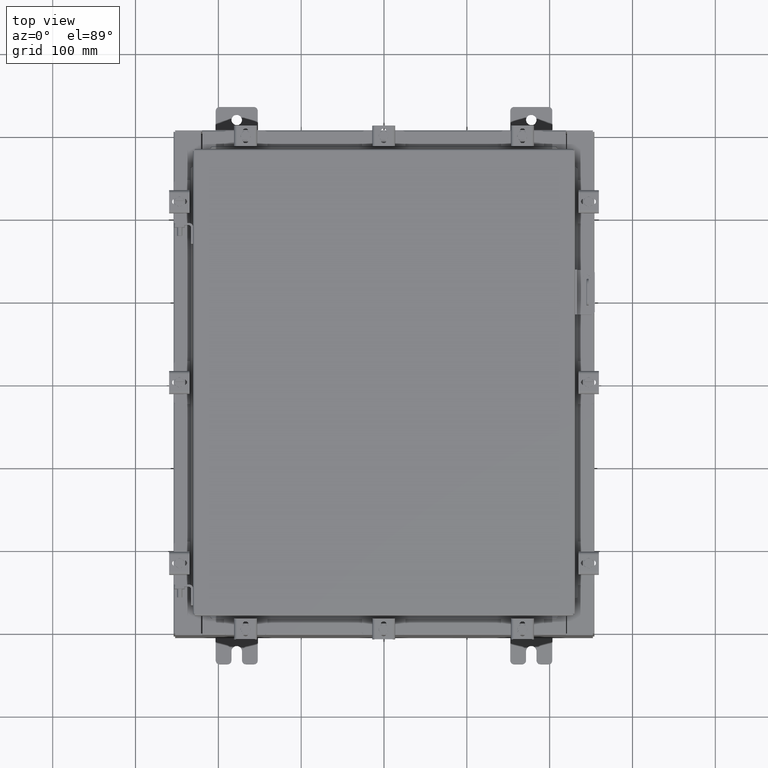
[diagram: clean part render]
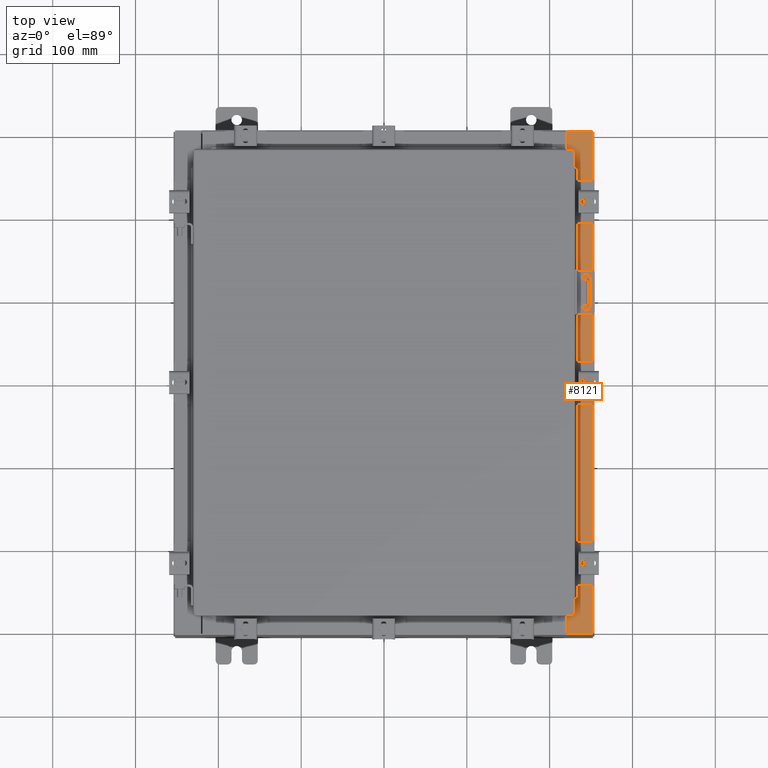
[diagram: same view with one face highlighted and labeled with its STEP entity id]
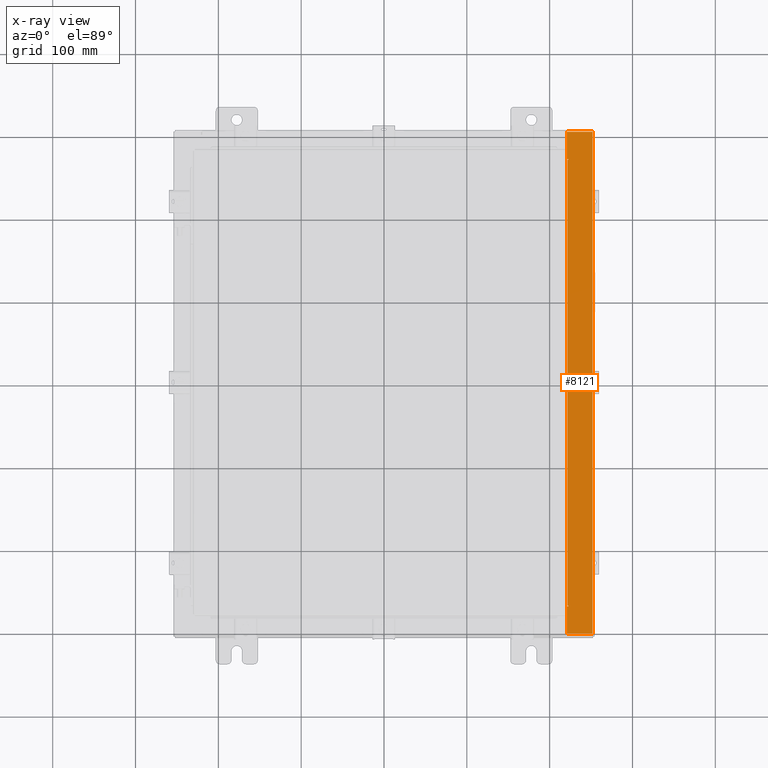
[diagram: x-ray of the same camera — body ghosted, the highlighted face saturated]
A machine part, top view. The second image highlights one B-rep face of the part: STEP entity #8121.
The next image is the same camera in x-ray: the body ghosted, the highlighted face saturated — about 0% of this face is hidden behind the body in this view.
In plain terms, the highlighted planar face has unit normal (-0, 0, -1).
Its self-contained STEP definition (entity closure, byte-faithful):
#71 = VERTEX_POINT ( 'NONE', #13041 ) ;
#249 = CARTESIAN_POINT ( 'NONE',  ( 8.750050000000030100, -10.59374999999999800, 7.925300000000007100 ) ) ;
#587 = CARTESIAN_POINT ( 'NONE',  ( 8.712700000000030100, 10.59374999999999600, 7.925300000000008900 ) ) ;
#917 = CARTESIAN_POINT ( 'NONE',  ( 8.750050000000030100, 10.63109999999999500, 7.925300000000008900 ) ) ;
#1127 = DIRECTION ( 'NONE',  ( -6.241167087353080700E-015, 0.0000000000000000000, -1.000000000000000000 ) ) ;
#1438 = DIRECTION ( 'NONE',  ( -0.0000000000000000000, 1.000000000000000000, -0.0000000000000000000 ) ) ;
#1679 = LINE ( 'NONE', #917, #15033 ) ;
#1693 = VECTOR ( 'NONE', #3961, 39.37007874015748100 ) ;
#1950 = ORIENTED_EDGE ( 'NONE', *, *, #14700, .F. ) ;
#2040 = LINE ( 'NONE', #587, #19522 ) ;
#2306 = CARTESIAN_POINT ( 'NONE',  ( 8.699700000000028400, 10.63109999999999600, 7.925300000000007100 ) ) ;
#2308 = EDGE_CURVE ( 'NONE', #4263, #12894, #5749, .T. ) ;
#2319 = VERTEX_POINT ( 'NONE', #4251 ) ;
#2482 = ORIENTED_EDGE ( 'NONE', *, *, #6385, .T. ) ;
#2648 = VECTOR ( 'NONE', #6606, 39.37007874015748100 ) ;
#2853 = AXIS2_PLACEMENT_3D ( 'NONE', #22026, #1127, #13351 ) ;
#2927 = ORIENTED_EDGE ( 'NONE', *, *, #17074, .F. ) ;
#2955 = CARTESIAN_POINT ( 'NONE',  ( 8.699700000000028400, -2.820533458446088700E-030, 7.925300000000007100 ) ) ;
#3057 = CARTESIAN_POINT ( 'NONE',  ( 4.972393517341134900E-014, 11.92529999999999800, 7.925300000000062200 ) ) ;
#3680 = EDGE_CURVE ( 'NONE', #21090, #11842, #16382, .T. ) ;
#3961 = DIRECTION ( 'NONE',  ( -3.242104277671754600E-031, -1.000000000000000000, 2.023451451157158500E-045 ) ) ;
#4081 = CARTESIAN_POINT ( 'NONE',  ( 8.699700000000028400, 11.92529999999999600, 7.925300000000007100 ) ) ;
#4251 = CARTESIAN_POINT ( 'NONE',  ( 8.750050000000030100, 10.59374999999999600, 7.925300000000007100 ) ) ;
#4263 = VERTEX_POINT ( 'NONE', #4081 ) ;
#4594 = VECTOR ( 'NONE', #7135, 39.37007874015748100 ) ;
#4816 = DIRECTION ( 'NONE',  ( -1.000000000000000000, 0.0000000000000000000, 6.241167087353082300E-015 ) ) ;
#4856 = CARTESIAN_POINT ( 'NONE',  ( 9.912300000000028500, -11.92530000000000000, 7.925300000000000000 ) ) ;
#5375 = CARTESIAN_POINT ( 'NONE',  ( 8.699700000000028400, -10.63109999999999600, 7.925300000000008900 ) ) ;
#5408 = ORIENTED_EDGE ( 'NONE', *, *, #5677, .F. ) ;
#5677 = EDGE_CURVE ( 'NONE', #15690, #9689, #13901, .T. ) ;
#5749 = LINE ( 'NONE', #2955, #1693 ) ;
#6385 = EDGE_CURVE ( 'NONE', #21446, #4263, #6472, .T. ) ;
#6472 = LINE ( 'NONE', #3057, #20430 ) ;
#6606 = DIRECTION ( 'NONE',  ( -0.0000000000000000000, -1.000000000000000000, -0.0000000000000000000 ) ) ;
#6727 = LINE ( 'NONE', #8444, #14920 ) ;
#6761 = VECTOR ( 'NONE', #18297, 39.37007874015748100 ) ;
#6998 = EDGE_CURVE ( 'NONE', #21446, #12657, #16576, .T. ) ;
#7047 = EDGE_CURVE ( 'NONE', #71, #12657, #6727, .T. ) ;
#7135 = DIRECTION ( 'NONE',  ( 1.000000000000000000, 0.0000000000000000000, 0.0000000000000000000 ) ) ;
#7506 = CARTESIAN_POINT ( 'NONE',  ( 8.750050000000030100, 10.61242499999999500, 7.925300000000008900 ) ) ;
#7754 = CARTESIAN_POINT ( 'NONE',  ( 8.699700000000028400, -2.820533458446088700E-030, 7.925300000000007100 ) ) ;
#7761 = CARTESIAN_POINT ( 'NONE',  ( 8.750050000000030100, -10.61242499999999800, 7.925300000000008900 ) ) ;
#8066 = ORIENTED_EDGE ( 'NONE', *, *, #2308, .T. ) ;
#8121 = ADVANCED_FACE ( 'NONE', ( #14182 ), #9798, .F. ) ;
#8179 = LINE ( 'NONE', #15308, #16942 ) ;
#8444 = CARTESIAN_POINT ( 'NONE',  ( 4.972393517341134900E-014, -11.92530000000000000, 7.925300000000062200 ) ) ;
#8558 = CIRCLE ( 'NONE', #11646, 0.01867499999999949400 ) ;
#8605 = EDGE_LOOP ( 'NONE', ( #5408, #18179, #21928, #17253, #2482, #8066, #1950, #14076, #18702, #17076, #11021, #2927 ) ) ;
#9224 = EDGE_CURVE ( 'NONE', #15690, #71, #20698, .T. ) ;
#9255 = DIRECTION ( 'NONE',  ( 1.000000000000000000, 0.0000000000000000000, 0.0000000000000000000 ) ) ;
#9508 = DIRECTION ( 'NONE',  ( 1.000000000000000000, 0.0000000000000000000, 0.0000000000000000000 ) ) ;
#9689 = VERTEX_POINT ( 'NONE', #17288 ) ;
#9798 = PLANE ( 'NONE',  #2853 ) ;
#10506 = CARTESIAN_POINT ( 'NONE',  ( 8.712700000000030100, -10.59374999999999800, 7.925300000000008900 ) ) ;
#11021 = ORIENTED_EDGE ( 'NONE', *, *, #3680, .F. ) ;
#11342 = DIRECTION ( 'NONE',  ( -1.000000000000000000, 4.340572780399910900E-014, 0.0000000000000000000 ) ) ;
#11646 = AXIS2_PLACEMENT_3D ( 'NONE', #7506, #19726, #9255 ) ;
#11842 = VERTEX_POINT ( 'NONE', #10506 ) ;
#12657 = VERTEX_POINT ( 'NONE', #20781 ) ;
#12782 = CIRCLE ( 'NONE', #20400, 0.01867499999999949400 ) ;
#12894 = VERTEX_POINT ( 'NONE', #2306 ) ;
#13041 = CARTESIAN_POINT ( 'NONE',  ( 8.699700000000028400, -11.92530000000000000, 7.925300000000007100 ) ) ;
#13351 = DIRECTION ( 'NONE',  ( -1.000000000000000000, 0.0000000000000000000, 6.241167087353080700E-015 ) ) ;
#13901 = LINE ( 'NONE', #5375, #4594 ) ;
#14076 = ORIENTED_EDGE ( 'NONE', *, *, #20466, .F. ) ;
#14182 = FACE_OUTER_BOUND ( 'NONE', #8605, .T. ) ;
#14700 = EDGE_CURVE ( 'NONE', #16459, #12894, #1679, .T. ) ;
#14821 = CARTESIAN_POINT ( 'NONE',  ( 8.699700000000028400, -10.63109999999999600, 7.925300000000007100 ) ) ;
#14920 = VECTOR ( 'NONE', #15491, 39.37007874015748100 ) ;
#15033 = VECTOR ( 'NONE', #11342, 39.37007874015748100 ) ;
#15219 = CARTESIAN_POINT ( 'NONE',  ( 9.912300000000028500, 11.92529999999999800, 7.925300000000000000 ) ) ;
#15285 = EDGE_CURVE ( 'NONE', #11842, #15765, #8179, .T. ) ;
#15308 = CARTESIAN_POINT ( 'NONE',  ( 8.712700000000030100, -10.59375000000000000, 7.925300000000008900 ) ) ;
#15491 = DIRECTION ( 'NONE',  ( 1.000000000000000000, 4.084933421431490900E-032, -6.241167087353082300E-015 ) ) ;
#15690 = VERTEX_POINT ( 'NONE', #14821 ) ;
#15765 = VERTEX_POINT ( 'NONE', #18450 ) ;
#16382 = LINE ( 'NONE', #20028, #17480 ) ;
#16459 = VERTEX_POINT ( 'NONE', #21804 ) ;
#16576 = LINE ( 'NONE', #4856, #2648 ) ;
#16942 = VECTOR ( 'NONE', #1438, 39.37007874015748100 ) ;
#17074 = EDGE_CURVE ( 'NONE', #9689, #21090, #12782, .T. ) ;
#17076 = ORIENTED_EDGE ( 'NONE', *, *, #15285, .F. ) ;
#17253 = ORIENTED_EDGE ( 'NONE', *, *, #6998, .F. ) ;
#17288 = CARTESIAN_POINT ( 'NONE',  ( 8.750050000000030100, -10.63109999999999600, 7.925300000000007100 ) ) ;
#17480 = VECTOR ( 'NONE', #18960, 39.37007874015748100 ) ;
#18066 = DIRECTION ( 'NONE',  ( 1.000000000000000000, 0.0000000000000000000, 0.0000000000000000000 ) ) ;
#18179 = ORIENTED_EDGE ( 'NONE', *, *, #9224, .T. ) ;
#18297 = DIRECTION ( 'NONE',  ( -3.242104277671754600E-031, -1.000000000000000000, 2.023451451157158500E-045 ) ) ;
#18450 = CARTESIAN_POINT ( 'NONE',  ( 8.712700000000030100, 10.59374999999999600, 7.925300000000008900 ) ) ;
#18702 = ORIENTED_EDGE ( 'NONE', *, *, #19830, .F. ) ;
#18960 = DIRECTION ( 'NONE',  ( -1.000000000000000000, 0.0000000000000000000, 0.0000000000000000000 ) ) ;
#19522 = VECTOR ( 'NONE', #18066, 39.37007874015748100 ) ;
#19726 = DIRECTION ( 'NONE',  ( 6.241167087353081500E-015, 0.0000000000000000000, 1.000000000000000000 ) ) ;
#19830 = EDGE_CURVE ( 'NONE', #15765, #2319, #2040, .T. ) ;
#19985 = DIRECTION ( 'NONE',  ( 6.241167087353081500E-015, 0.0000000000000000000, 1.000000000000000000 ) ) ;
#20028 = CARTESIAN_POINT ( 'NONE',  ( 8.750050000000030100, -10.59374999999999800, 7.925300000000008900 ) ) ;
#20400 = AXIS2_PLACEMENT_3D ( 'NONE', #7761, #19985, #9508 ) ;
#20430 = VECTOR ( 'NONE', #4816, 39.37007874015748100 ) ;
#20466 = EDGE_CURVE ( 'NONE', #2319, #16459, #8558, .T. ) ;
#20698 = LINE ( 'NONE', #7754, #6761 ) ;
#20781 = CARTESIAN_POINT ( 'NONE',  ( 9.912300000000028500, -11.92530000000000000, 7.925300000000000000 ) ) ;
#21090 = VERTEX_POINT ( 'NONE', #249 ) ;
#21446 = VERTEX_POINT ( 'NONE', #15219 ) ;
#21804 = CARTESIAN_POINT ( 'NONE',  ( 8.750050000000030100, 10.63109999999999500, 7.925300000000007100 ) ) ;
#21928 = ORIENTED_EDGE ( 'NONE', *, *, #7047, .T. ) ;
#22026 = CARTESIAN_POINT ( 'NONE',  ( 4.972393517341134900E-014, 0.0000000000000000000, 7.925300000000062200 ) ) ;